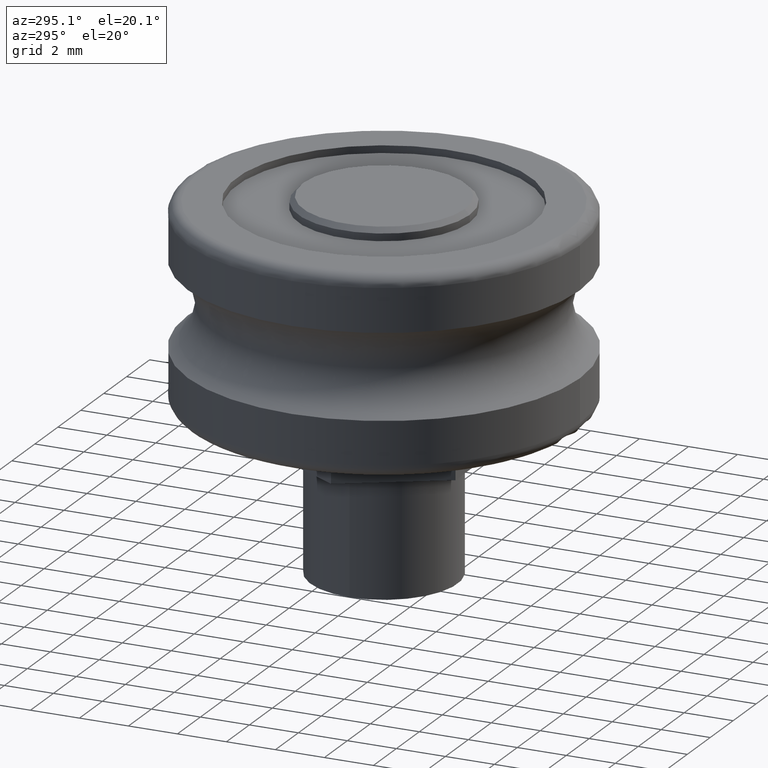
[diagram: clean part render]
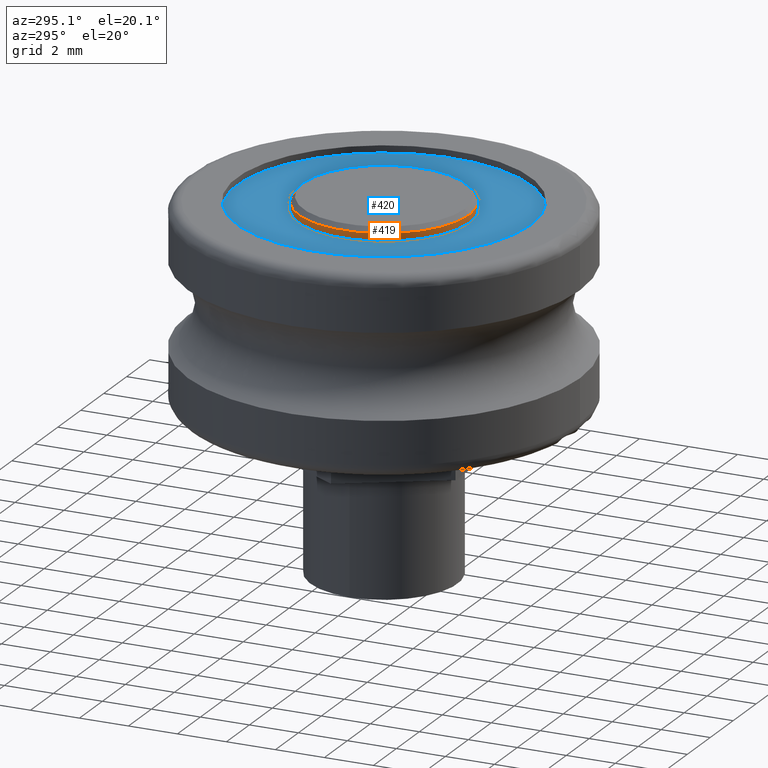
[diagram: same view with the hole feature highlighted: cylindrical wall and planar end face, labeled with their STEP entity ids]
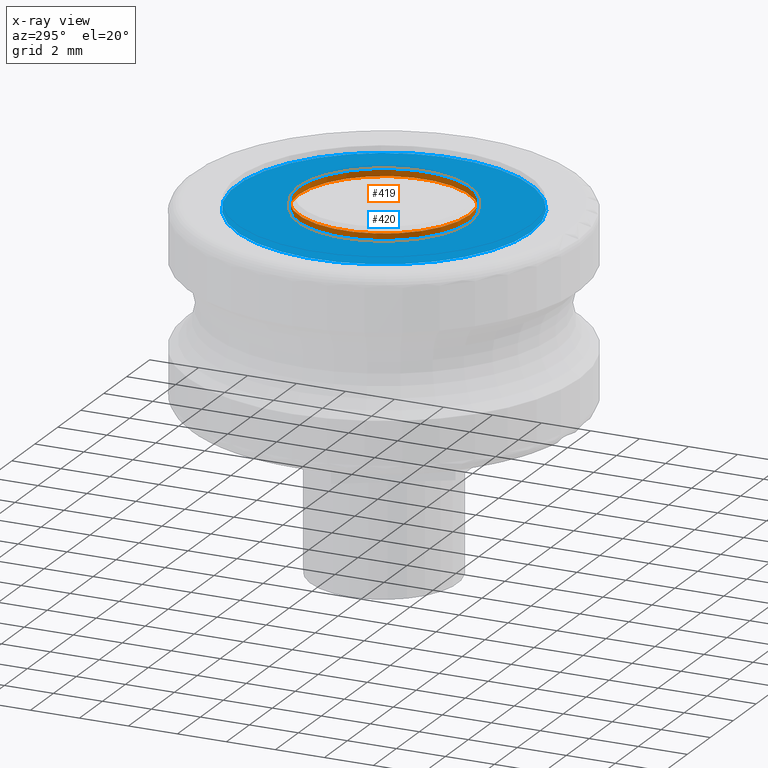
[diagram: x-ray of the same camera — body ghosted, the hole faces saturated]
A machine part, auxiliary view. The highlighted faces form one hole feature of diameter 7 mm: the cylindrical wall (entity #419, orange) and its adjacent planar end face (entity #420, blue) — they share a circular edge in the B-rep.
The next image is the same camera in x-ray (body ghosted, the hole faces saturated) — the bore reads through the body.
Wall:
#40=CYLINDRICAL_SURFACE('',#476,3.5);
#59=FACE_OUTER_BOUND('',#89,.T.);
#89=EDGE_LOOP('',(#334,#335,#336,#337));
#129=LINE('',#711,#157);
#157=VECTOR('',#577,3.5);
#168=CIRCLE('',#474,3.5);
#170=CIRCLE('',#477,3.5);
#207=VERTEX_POINT('',#703);
#209=VERTEX_POINT('',#709);
#251=EDGE_CURVE('',#207,#207,#168,.T.);
#254=EDGE_CURVE('',#209,#209,#170,.T.);
#255=EDGE_CURVE('',#209,#207,#129,.T.);
#334=ORIENTED_EDGE('',*,*,#254,.F.);
#335=ORIENTED_EDGE('',*,*,#255,.T.);
#336=ORIENTED_EDGE('',*,*,#251,.T.);
#337=ORIENTED_EDGE('',*,*,#255,.F.);
#419=ADVANCED_FACE('',(#59),#40,.T.);
#474=AXIS2_PLACEMENT_3D('',#704,#568,#569);
#476=AXIS2_PLACEMENT_3D('',#708,#573,#574);
#477=AXIS2_PLACEMENT_3D('',#710,#575,#576);
#568=DIRECTION('center_axis',(0.,0.,-1.));
#569=DIRECTION('ref_axis',(1.,0.,0.));
#573=DIRECTION('center_axis',(0.,0.,-1.));
#574=DIRECTION('ref_axis',(0.,1.,0.));
#575=DIRECTION('center_axis',(0.,0.,-1.));
#576=DIRECTION('ref_axis',(1.,0.,0.));
#577=DIRECTION('',(0.,0.,1.));
#703=CARTESIAN_POINT('',(-4.28626379701574E-16,-3.5,4.));
#704=CARTESIAN_POINT('Origin',(0.,0.,4.));
#708=CARTESIAN_POINT('Origin',(0.,0.,3.85));
#709=CARTESIAN_POINT('',(-4.28626379701574E-16,-3.5,3.7));
#710=CARTESIAN_POINT('Origin',(0.,0.,3.7));
#711=CARTESIAN_POINT('',(-4.28626379701574E-16,-3.5,3.85));
End face:
#20=FACE_BOUND('',#91,.T.);
#33=PLANE('',#478);
#60=FACE_OUTER_BOUND('',#90,.T.);
#90=EDGE_LOOP('',(#338));
#91=EDGE_LOOP('',(#339));
#170=CIRCLE('',#477,3.5);
#171=CIRCLE('',#479,6.);
#209=VERTEX_POINT('',#709);
#210=VERTEX_POINT('',#713);
#254=EDGE_CURVE('',#209,#209,#170,.T.);
#256=EDGE_CURVE('',#210,#210,#171,.T.);
#338=ORIENTED_EDGE('',*,*,#256,.F.);
#339=ORIENTED_EDGE('',*,*,#254,.T.);
#420=ADVANCED_FACE('',(#60,#20),#33,.T.);
#477=AXIS2_PLACEMENT_3D('',#710,#575,#576);
#478=AXIS2_PLACEMENT_3D('',#712,#578,#579);
#479=AXIS2_PLACEMENT_3D('',#714,#580,#581);
#575=DIRECTION('center_axis',(0.,0.,-1.));
#576=DIRECTION('ref_axis',(1.,0.,0.));
#578=DIRECTION('center_axis',(0.,0.,1.));
#579=DIRECTION('ref_axis',(1.,0.,0.));
#580=DIRECTION('center_axis',(0.,0.,-1.));
#581=DIRECTION('ref_axis',(1.,0.,0.));
#709=CARTESIAN_POINT('',(-4.28626379701574E-16,-3.5,3.7));
#710=CARTESIAN_POINT('Origin',(0.,0.,3.7));
#712=CARTESIAN_POINT('Origin',(0.,6.,3.7));
#713=CARTESIAN_POINT('',(-7.34788079488412E-16,-6.,3.7));
#714=CARTESIAN_POINT('Origin',(0.,0.,3.7));